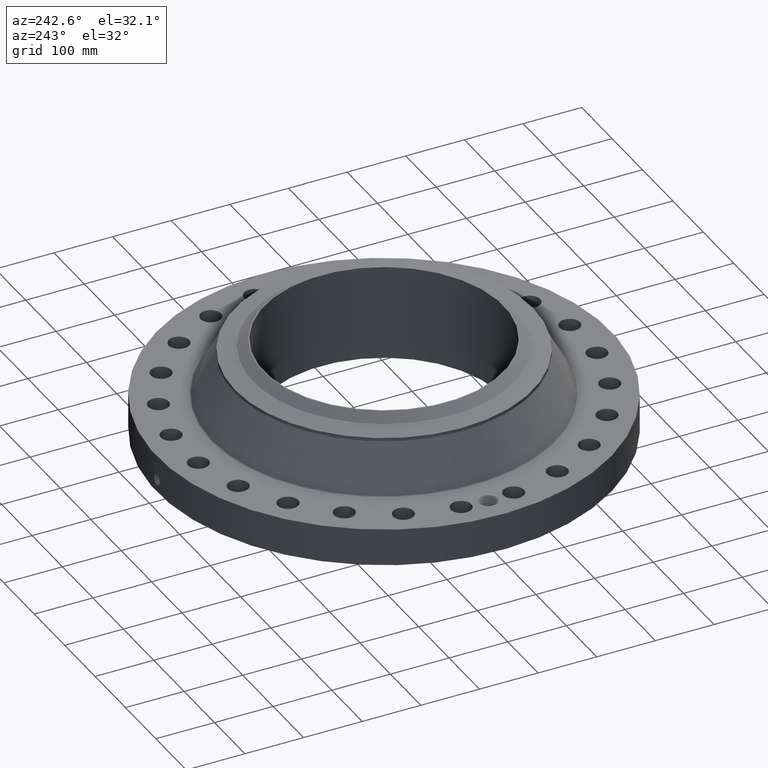
[diagram: clean part render]
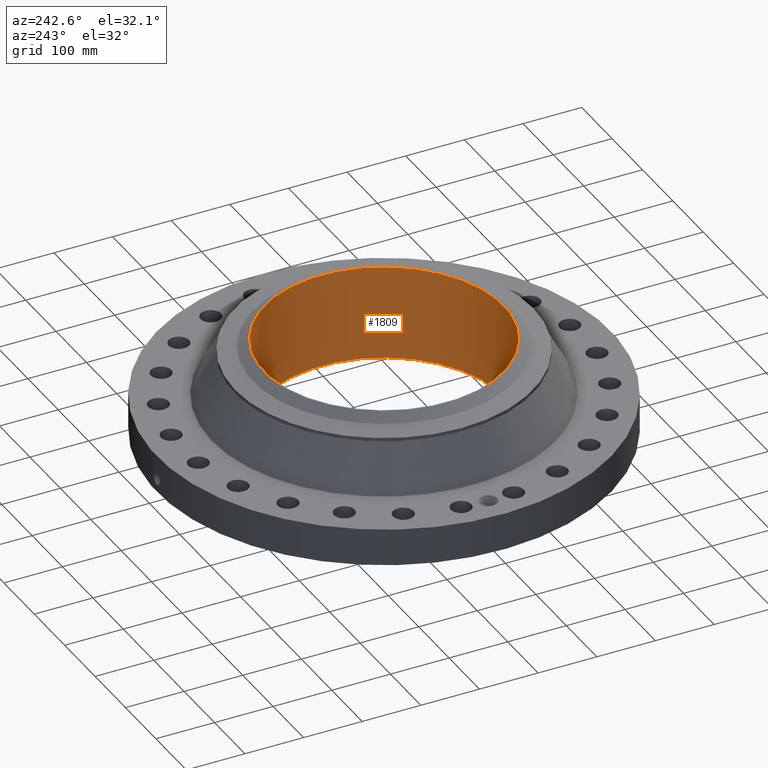
[diagram: same view with one face highlighted and labeled with its STEP entity id]
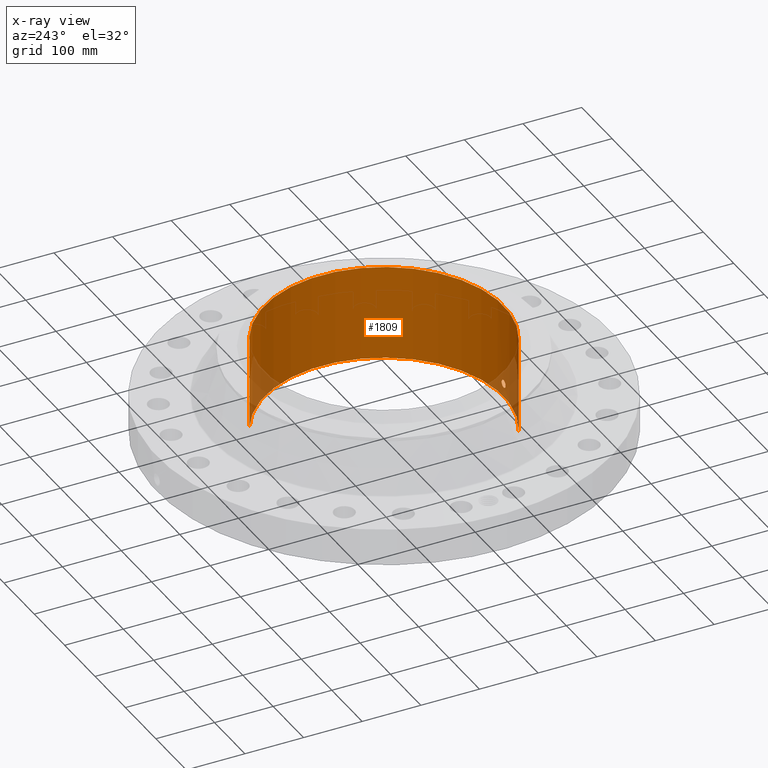
[diagram: x-ray of the same camera — body ghosted, the highlighted face saturated]
A machine part, auxiliary view. The second image highlights one B-rep face of the part: STEP entity #1809.
The next image is the same camera in x-ray: the body ghosted, the highlighted face saturated — about 7% of this face is hidden behind the body in this view.
In plain terms, the highlighted cylindrical surface (partial cylindrical patch) has radius 203.987 mm, axis along (0, 0, -1).
Its self-contained STEP definition (entity closure, byte-faithful):
#258=AXIS2_PLACEMENT_3D('Circle Axis2P3D',#256,#257,$) ;
#1740=AXIS2_PLACEMENT_3D('Cylinder Axis2P3D',#1737,#1738,#1739) ;
#1744=AXIS2_PLACEMENT_3D('Circle Axis2P3D',#1742,#1743,$) ;
#256=CARTESIAN_POINT('Axis2P3D Location',(0.,0.,0.0600000000002)) ;
#260=CARTESIAN_POINT('Vertex',(3.85026650055,7.04786555457,0.0600000000002)) ;
#262=CARTESIAN_POINT('Vertex',(-3.85026650055,-7.04786555457,0.0600000000002)) ;
#1737=CARTESIAN_POINT('Axis2P3D Location',(0.,0.,3.25000000001)) ;
#1742=CARTESIAN_POINT('Axis2P3D Location',(0.,0.,6.44000000003)) ;
#1746=CARTESIAN_POINT('Vertex',(3.85026650055,7.04786555457,6.44000000003)) ;
#1748=CARTESIAN_POINT('Vertex',(-3.85026650055,-7.04786555457,6.44000000003)) ;
#1751=CARTESIAN_POINT('Line Origine',(3.85026650055,7.04786555457,3.25000000001)) ;
#1756=CARTESIAN_POINT('Line Origine',(-3.85026650055,-7.04786555457,3.25000000001)) ;
#1768=CARTESIAN_POINT('Control Point',(0.219395640473,-8.02800265031,0.820143615352)) ;
#1769=CARTESIAN_POINT('Control Point',(0.194443231345,-8.02868456959,0.774468536816)) ;
#1770=CARTESIAN_POINT('Control Point',(0.157606155133,-8.02959426464,0.735289568085)) ;
#1771=CARTESIAN_POINT('Control Point',(0.111110289663,-8.03047894444,0.706757867055)) ;
#1772=CARTESIAN_POINT('Control Point',(0.0336761688067,-8.0311828387,0.68411782551)) ;
#1773=CARTESIAN_POINT('Control Point',(-0.0446680706565,-8.03093962884,0.691943215722)) ;
#1774=CARTESIAN_POINT('Control Point',(-0.070296980092,-8.03075082117,0.697955295341)) ;
#1775=CARTESIAN_POINT('Control Point',(-0.143952060415,-8.02991643995,0.725785403279)) ;
#1776=CARTESIAN_POINT('Control Point',(-0.203238942449,-8.02855443048,0.780496572446)) ;
#1777=CARTESIAN_POINT('Control Point',(-0.232205394973,-8.02766102467,0.826733244553)) ;
#1778=CARTESIAN_POINT('Control Point',(-0.25583978399,-8.02692648241,0.904880951913)) ;
#1779=CARTESIAN_POINT('Control Point',(-0.248284067966,-8.02716111598,0.984247986214)) ;
#1780=CARTESIAN_POINT('Control Point',(-0.242050260821,-8.02735751363,1.01081253778)) ;
#1781=CARTESIAN_POINT('Control Point',(-0.23231626622,-8.02764954518,1.03620533787)) ;
#1782=CARTESIAN_POINT('Control Point',(-0.219395640473,-8.02800265031,1.05985638466)) ;
#1783=CARTESIAN_POINT('Vertex',(0.219395640473,-8.02800265031,0.820143615352)) ;
#1785=CARTESIAN_POINT('Vertex',(-0.219395640473,-8.02800265031,1.05985638466)) ;
#1789=CARTESIAN_POINT('Control Point',(-0.219395640473,-8.02800265031,1.05985638466)) ;
#1790=CARTESIAN_POINT('Control Point',(-0.19444323134,-8.02868456959,1.1055314632)) ;
#1791=CARTESIAN_POINT('Control Point',(-0.157606155117,-8.02959426464,1.14471043194)) ;
#1792=CARTESIAN_POINT('Control Point',(-0.111110289686,-8.03047894444,1.17324213295)) ;
#1793=CARTESIAN_POINT('Control Point',(-0.033676168828,-8.0311828387,1.1958821745)) ;
#1794=CARTESIAN_POINT('Control Point',(0.0446680706368,-8.03093962884,1.18805678429)) ;
#1795=CARTESIAN_POINT('Control Point',(0.0702969801092,-8.03075082117,1.18204470466)) ;
#1796=CARTESIAN_POINT('Control Point',(0.143952060389,-8.02991643995,1.15421459673)) ;
#1797=CARTESIAN_POINT('Control Point',(0.203238942396,-8.02855443048,1.09950342761)) ;
#1798=CARTESIAN_POINT('Control Point',(0.232205394993,-8.02766102467,1.05326675539)) ;
#1799=CARTESIAN_POINT('Control Point',(0.255839783992,-8.02692648241,0.975119048043)) ;
#1800=CARTESIAN_POINT('Control Point',(0.248284067963,-8.02716111598,0.895752013759)) ;
#1801=CARTESIAN_POINT('Control Point',(0.242050260833,-8.02735751363,0.869187462255)) ;
#1802=CARTESIAN_POINT('Control Point',(0.232316266228,-8.02764954518,0.843794662152)) ;
#1803=CARTESIAN_POINT('Control Point',(0.219395640473,-8.02800265031,0.820143615352)) ;
#257=DIRECTION('Axis2P3D Direction',(0.,0.,-0.0393700787402)) ;
#1738=DIRECTION('Axis2P3D Direction',(0.,0.,-0.0393700787402)) ;
#1739=DIRECTION('Axis2P3D XDirection',(-0.0188750212049,-0.0345504945626,0.)) ;
#1743=DIRECTION('Axis2P3D Direction',(0.,0.,-0.0393700787402)) ;
#1752=DIRECTION('Vector Direction',(0.,0.,-0.0393700787402)) ;
#1757=DIRECTION('Vector Direction',(0.,0.,-0.0393700787402)) ;
#1753=VECTOR('Line Direction',#1752,0.0393700787402) ;
#1758=VECTOR('Line Direction',#1757,0.0393700787402) ;
#1762=ORIENTED_EDGE('',*,*,#1750,.F.) ;
#1763=ORIENTED_EDGE('',*,*,#1755,.T.) ;
#1764=ORIENTED_EDGE('',*,*,#264,.T.) ;
#1765=ORIENTED_EDGE('',*,*,#1760,.F.) ;
#1806=ORIENTED_EDGE('',*,*,#1787,.F.) ;
#1807=ORIENTED_EDGE('',*,*,#1804,.F.) ;
#1808=FACE_BOUND('',#1805,.T.) ;
#1809=ADVANCED_FACE('PartBody',(#1766,#1808),#1741,.F.) ;
#1767=B_SPLINE_CURVE_WITH_KNOTS('',5,(#1768,#1769,#1770,#1771,#1772,#1773,#1774,#1775,#1776,#1777,#1778,#1779,#1780,#1781,#1782),.UNSPECIFIED.,.F.,.U.,(6,3,3,3,6),(0.,9.3486157608,14.0227898314,23.3728212192,28.2136349806),.UNSPECIFIED.) ;
#1788=B_SPLINE_CURVE_WITH_KNOTS('',5,(#1789,#1790,#1791,#1792,#1793,#1794,#1795,#1796,#1797,#1798,#1799,#1800,#1801,#1802,#1803),.UNSPECIFIED.,.F.,.U.,(6,3,3,3,6),(0.,9.34861576283,14.0227898317,23.3728212134,28.2136349779),.UNSPECIFIED.) ;
#259=CIRCLE('generated circle',#258,8.03100000003) ;
#1745=CIRCLE('generated circle',#1744,8.03100000003) ;
#1741=CYLINDRICAL_SURFACE('generated cylinder',#1740,8.03100000003) ;
#264=EDGE_CURVE('',#261,#263,#259,.T.) ;
#1750=EDGE_CURVE('',#1747,#1749,#1745,.T.) ;
#1755=EDGE_CURVE('',#1747,#261,#1754,.T.) ;
#1760=EDGE_CURVE('',#1749,#263,#1759,.T.) ;
#1787=EDGE_CURVE('',#1784,#1786,#1767,.T.) ;
#1804=EDGE_CURVE('',#1786,#1784,#1788,.T.) ;
#1761=EDGE_LOOP('',(#1762,#1763,#1764,#1765)) ;
#1805=EDGE_LOOP('',(#1806,#1807)) ;
#1766=FACE_OUTER_BOUND('',#1761,.T.) ;
#1754=LINE('Line',#1751,#1753) ;
#1759=LINE('Line',#1756,#1758) ;
#261=VERTEX_POINT('',#260) ;
#263=VERTEX_POINT('',#262) ;
#1747=VERTEX_POINT('',#1746) ;
#1749=VERTEX_POINT('',#1748) ;
#1784=VERTEX_POINT('',#1783) ;
#1786=VERTEX_POINT('',#1785) ;